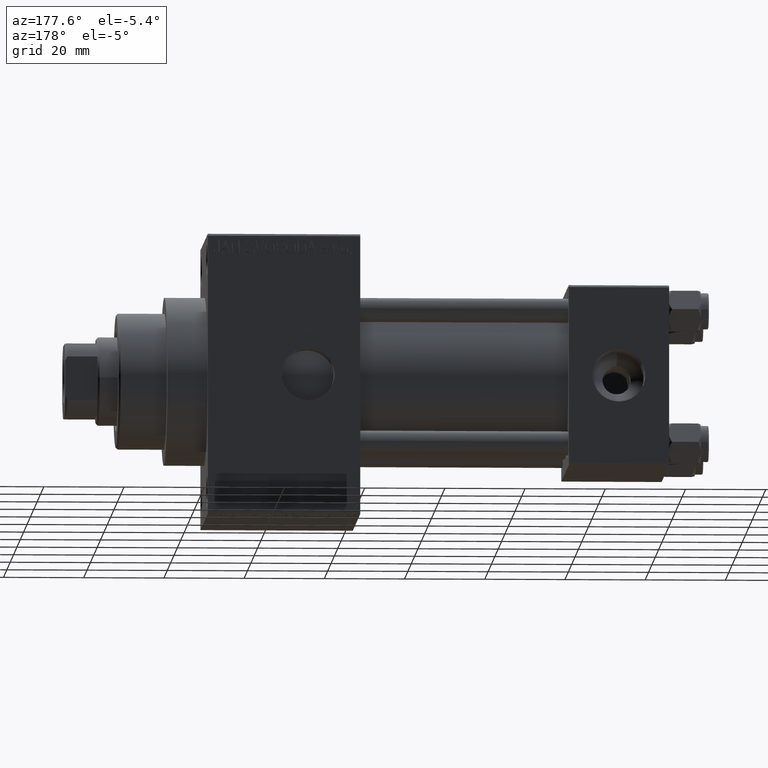
[diagram: clean part render]
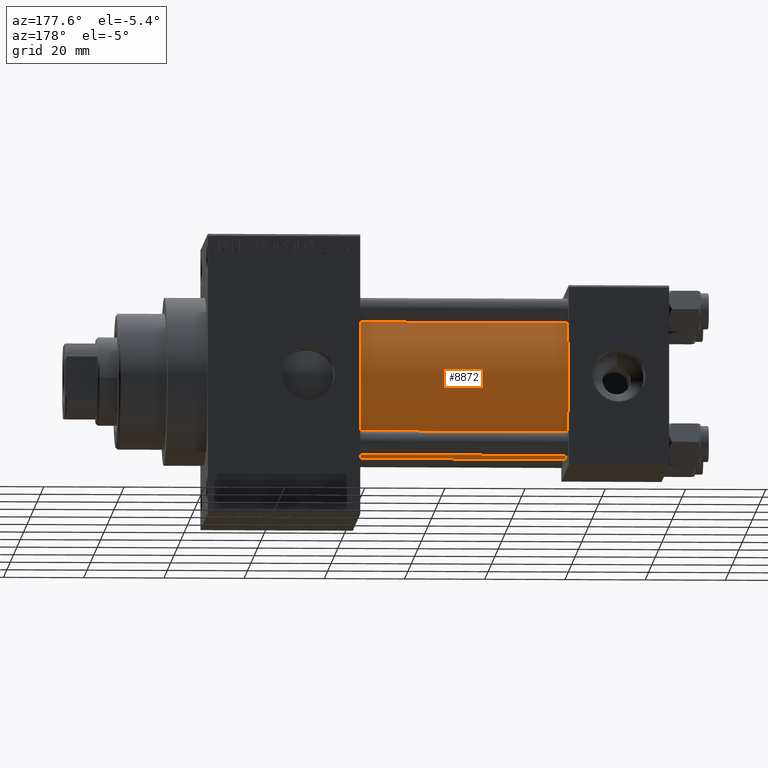
[diagram: same view with one face highlighted and labeled with its STEP entity id]
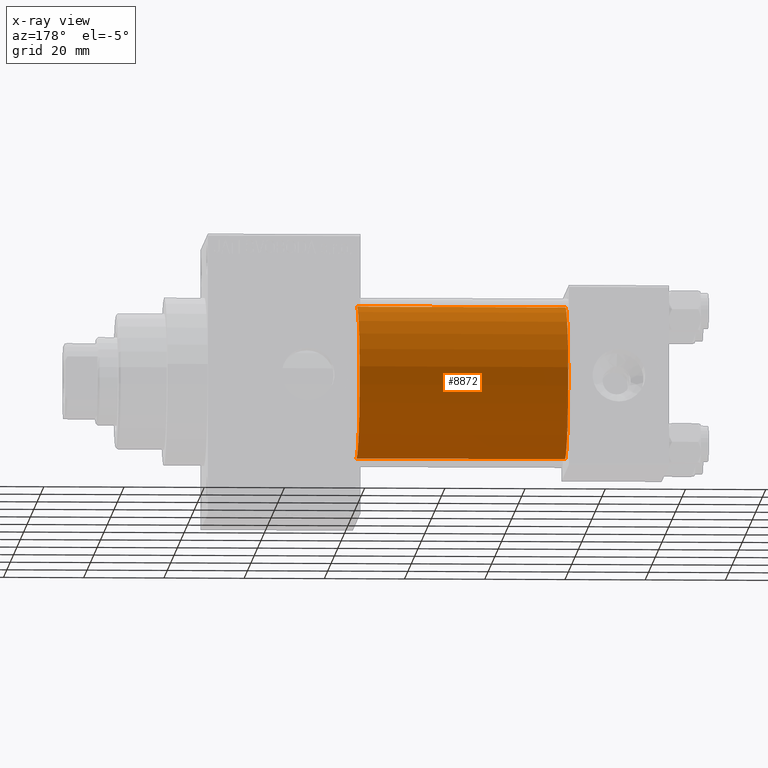
[diagram: x-ray of the same camera — body ghosted, the highlighted face saturated]
A machine part, auxiliary view. The second image highlights one B-rep face of the part: STEP entity #8872.
The next image is the same camera in x-ray: the body ghosted, the highlighted face saturated — about 0% of this face is hidden behind the body in this view.
In plain terms, the highlighted cylindrical surface (partial cylindrical patch) has radius 19 mm, axis along (-1, -0, -0).
Its self-contained STEP definition (entity closure, byte-faithful):
#156 = CARTESIAN_POINT ( 'NONE',  ( 77.00000000000000000, -2.602085213965210642E-15, 19.00000000000000000 ) ) ;
#1156 = AXIS2_PLACEMENT_3D ( 'NONE', #3122, #7595, #22728 ) ;
#1578 = DIRECTION ( 'NONE',  ( -1.000000000000000000, -0.000000000000000000, -0.000000000000000000 ) ) ;
#1715 = VERTEX_POINT ( 'NONE', #2824 ) ;
#2824 = CARTESIAN_POINT ( 'NONE',  ( 77.00000000000000000, -2.752562955852400657E-16, -19.00000000000000000 ) ) ;
#2944 = CIRCLE ( 'NONE', #38634, 19.00000000000000000 ) ;
#3122 = CARTESIAN_POINT ( 'NONE',  ( 77.00000000000000000, -2.602085213965210642E-15, 0.000000000000000000 ) ) ;
#3636 = ORIENTED_EDGE ( 'NONE', *, *, #35628, .T. ) ;
#3847 = VECTOR ( 'NONE', #1578, 1000.000000000000000 ) ;
#7595 = DIRECTION ( 'NONE',  ( -1.000000000000000000, -0.000000000000000000, -0.000000000000000000 ) ) ;
#8872 = ADVANCED_FACE ( 'NONE', ( #37374 ), #41599, .T. ) ;
#10112 = CIRCLE ( 'NONE', #16465, 19.00000000000000000 ) ;
#10644 = ORIENTED_EDGE ( 'NONE', *, *, #21622, .F. ) ;
#13120 = ORIENTED_EDGE ( 'NONE', *, *, #18203, .F. ) ;
#13559 = CARTESIAN_POINT ( 'NONE',  ( 25.00000000000000000, -2.602085213965210642E-15, 19.00000000000000000 ) ) ;
#15425 = LINE ( 'NONE', #31059, #43375 ) ;
#16300 = DIRECTION ( 'NONE',  ( 1.000000000000000000, -0.000000000000000000, 0.000000000000000000 ) ) ;
#16465 = AXIS2_PLACEMENT_3D ( 'NONE', #30721, #16300, #38642 ) ;
#17461 = CARTESIAN_POINT ( 'NONE',  ( 77.00000000000000000, -2.602085213965210642E-15, 19.00000000000000000 ) ) ;
#18203 = EDGE_CURVE ( 'NONE', #1715, #34971, #2944, .T. ) ;
#19104 = EDGE_CURVE ( 'NONE', #25970, #22569, #10112, .T. ) ;
#21622 = EDGE_CURVE ( 'NONE', #34971, #22569, #43518, .T. ) ;
#22569 = VERTEX_POINT ( 'NONE', #13559 ) ;
#22728 = DIRECTION ( 'NONE',  ( 0.000000000000000000, 0.000000000000000000, 1.000000000000000000 ) ) ;
#24718 = DIRECTION ( 'NONE',  ( 0.000000000000000000, 0.000000000000000000, -1.000000000000000000 ) ) ;
#25970 = VERTEX_POINT ( 'NONE', #39390 ) ;
#26977 = EDGE_LOOP ( 'NONE', ( #13120, #3636, #34037, #10644 ) ) ;
#30721 = CARTESIAN_POINT ( 'NONE',  ( 25.00000000000000000, -2.602085213965210642E-15, 0.000000000000000000 ) ) ;
#31059 = CARTESIAN_POINT ( 'NONE',  ( 77.00000000000000000, -2.752562955852400657E-16, -19.00000000000000000 ) ) ;
#34037 = ORIENTED_EDGE ( 'NONE', *, *, #19104, .T. ) ;
#34971 = VERTEX_POINT ( 'NONE', #156 ) ;
#35010 = DIRECTION ( 'NONE',  ( -1.000000000000000000, -0.000000000000000000, -0.000000000000000000 ) ) ;
#35628 = EDGE_CURVE ( 'NONE', #1715, #25970, #15425, .T. ) ;
#36129 = CARTESIAN_POINT ( 'NONE',  ( 77.00000000000000000, -2.602085213965210642E-15, 0.000000000000000000 ) ) ;
#37374 = FACE_OUTER_BOUND ( 'NONE', #26977, .T. ) ;
#38634 = AXIS2_PLACEMENT_3D ( 'NONE', #36129, #47059, #24718 ) ;
#38642 = DIRECTION ( 'NONE',  ( 0.000000000000000000, 0.000000000000000000, 1.000000000000000000 ) ) ;
#39390 = CARTESIAN_POINT ( 'NONE',  ( 25.00000000000000000, -2.752562955852400657E-16, -19.00000000000000000 ) ) ;
#41599 = CYLINDRICAL_SURFACE ( 'NONE', #1156, 19.00000000000000000 ) ;
#43375 = VECTOR ( 'NONE', #35010, 1000.000000000000000 ) ;
#43518 = LINE ( 'NONE', #17461, #3847 ) ;
#47059 = DIRECTION ( 'NONE',  ( 1.000000000000000000, 0.000000000000000000, 0.000000000000000000 ) ) ;